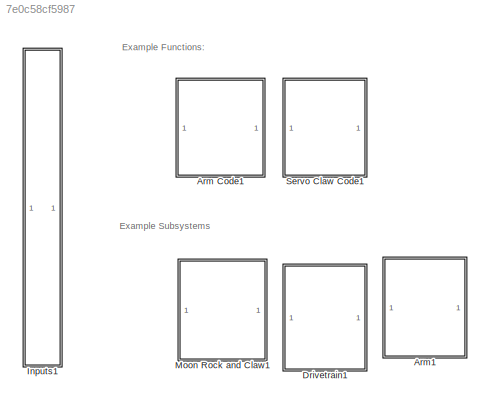
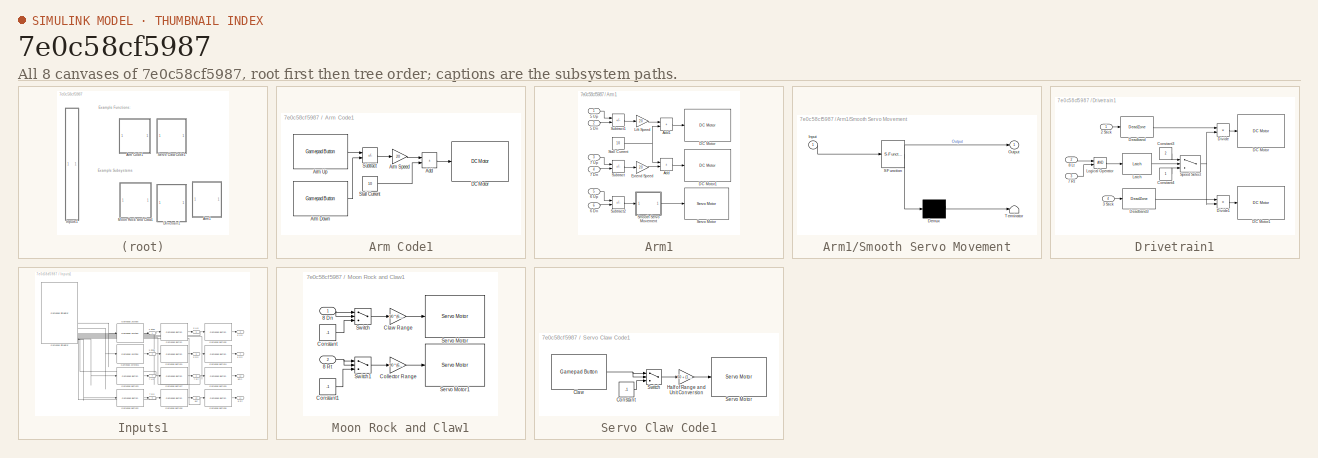
[diagram: thumbnail index - all 8 canvases of the model, root first then tree order]
MODEL slx_7e0c58cf5987
KIND model
CONFIG AbsTol = auto
CONFIG EnableMultiTasking = off
CONFIG FixedStep = auto
CONFIG MaxStep = auto
CONFIG MinStep = auto
CONFIG RelTol = 1e-3
CONFIG SampleTimeConstraint = Unconstrained
CONFIG SolverName = VariableStepAuto
CONFIG StartTime = 0.0
CONFIG StopTime = 10.0
BLOCK [SubSystem] Arm Code1
BLOCK [Sum] Arm Code1/Add
  IconShape = rectangular
BLOCK [Reference] Arm Code1/Arm Down  REF=vexarmcortexlib/Gamepad/Gamepad Button
  SourceBlock = vexarmcortexlib/Gamepad/Gamepad Button
  SourceType = Gamepad Button
BLOCK [Gain] Arm Code1/Arm Speed
  Gain = 20
BLOCK [Reference] Arm Code1/Arm Up  REF=vexarmcortexlib/Gamepad/Gamepad Button
  SourceBlock = vexarmcortexlib/Gamepad/Gamepad Button
  SourceType = Gamepad Button
BLOCK [Reference] Arm Code1/DC Motor  REF=vexarmcortexlib/Actuators/DC Motor
  Commented = on
  SourceBlock = vexarmcortexlib/Actuators/DC Motor
  SourceType = DC Motor
BLOCK [Constant] Arm Code1/Stall Current
  Value = 10
BLOCK [Sum] Arm Code1/Subtract
  IconShape = rectangular
  Inputs = +-
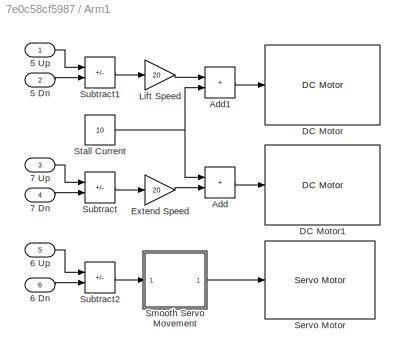
BLOCK [SubSystem] Arm1
BLOCK [Inport] Arm1/5 Dn
  Port = 2
BLOCK [Inport] Arm1/5 Up
BLOCK [Inport] Arm1/6 Dn
  Port = 6
BLOCK [Inport] Arm1/6 Up
  Port = 5
BLOCK [Inport] Arm1/7 Dn
  Port = 4
BLOCK [Inport] Arm1/7 Up
  Port = 3
BLOCK [Sum] Arm1/Add
  IconShape = rectangular
BLOCK [Sum] Arm1/Add1
  IconShape = rectangular
BLOCK [Reference] Arm1/DC Motor  REF=vexarmcortexlib/Actuators/DC Motor
  SourceBlock = vexarmcortexlib/Actuators/DC Motor
  SourceType = DC Motor
BLOCK [Reference] Arm1/DC Motor1  REF=vexarmcortexlib/Actuators/DC Motor
  SourceBlock = vexarmcortexlib/Actuators/DC Motor
  SourceType = DC Motor
BLOCK [Gain] Arm1/Extend Speed
  Gain = 20
BLOCK [Gain] Arm1/Lift Speed
  Gain = 20
BLOCK [Reference] Arm1/Servo Motor  REF=vexarmcortexlib/Actuators/Servo Motor
  SourceBlock = vexarmcortexlib/Actuators/Servo Motor
  SourceType = Servo Motor
BLOCK [SubSystem] Arm1/Smooth Servo Movement
  ErrorFcn = Stateflow.Translate.translate
  PermitHierarchicalResolution = ExplicitOnly
  SFBlockType = Chart
  TreatAsAtomicUnit = on
BLOCK [Demux] Arm1/Smooth Servo Movement/ Demux 
  Outputs = 1
BLOCK [S-Function] Arm1/Smooth Servo Movement/ SFunction 
  EnableBusSupport = on
  FunctionName = sf_sfun
  PortCounts = [1 2]
  SFcnIsStateOwnerBlock = off
  SFunctionDeploymentMode = off
  Tag = Stateflow S-Function 1
BLOCK [Terminator] Arm1/Smooth Servo Movement/ Terminator 
BLOCK [Inport] Arm1/Smooth Servo Movement/Input
BLOCK [Outport] Arm1/Smooth Servo Movement/Output
BLOCK [Constant] Arm1/Stall Current
  Value = 10
BLOCK [Sum] Arm1/Subtract
  IconShape = rectangular
  Inputs = +-
BLOCK [Sum] Arm1/Subtract1
  IconShape = rectangular
  Inputs = +-
BLOCK [Sum] Arm1/Subtract2
  IconShape = rectangular
  Inputs = +-
BLOCK [SubSystem] Drivetrain1
BLOCK [Inport] Drivetrain1/2 Stick
BLOCK [Inport] Drivetrain1/3 Stick
  Port = 4
BLOCK [Inport] Drivetrain1/7 Rt
  Port = 3
BLOCK [Inport] Drivetrain1/8 Lt
  Port = 2
BLOCK [Constant] Drivetrain1/Constant3
  Value = 2
BLOCK [Constant] Drivetrain1/Constant4
BLOCK [Reference] Drivetrain1/DC Motor  REF=vexarmcortexlib/Actuators/DC Motor
  SourceBlock = vexarmcortexlib/Actuators/DC Motor
  SourceType = DC Motor
BLOCK [Reference] Drivetrain1/DC Motor1  REF=vexarmcortexlib/Actuators/DC Motor
  SourceBlock = vexarmcortexlib/Actuators/DC Motor
  SourceType = DC Motor
BLOCK [DeadZone] Drivetrain1/Deadband
  LowerValue = -9
  UpperValue = 9
BLOCK [DeadZone] Drivetrain1/Deadband3
  LowerValue = -9
  UpperValue = 9
BLOCK [Product] Drivetrain1/Divide
  Inputs = */
BLOCK [Product] Drivetrain1/Divide1
  Inputs = */
BLOCK [Reference] Drivetrain1/Latch  REF=vexcommonlib/Latch
  SourceBlock = vexcommonlib/Latch
  SourceType = Latch
BLOCK [Logic] Drivetrain1/Logical Operator
  AllPortsSameDT = off
  OutDataTypeStr = boolean
BLOCK [Switch] Drivetrain1/Speed Select
  Criteria = u2 > Threshold
  InputSameDT = off
  SaturateOnIntegerOverflow = off
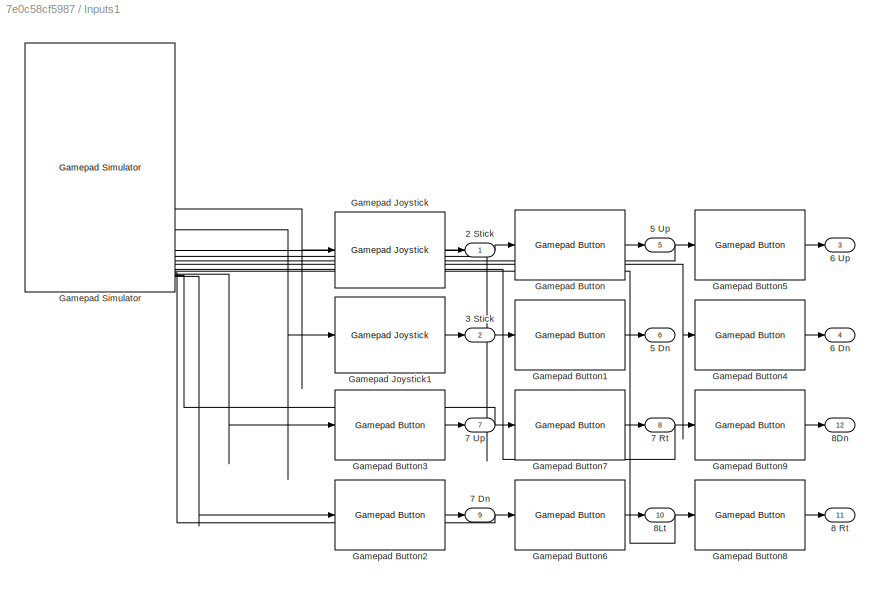
BLOCK [SubSystem] Inputs1
BLOCK [Outport] Inputs1/ 2 Stick
BLOCK [Outport] Inputs1/3 Stick
  Port = 2
BLOCK [Outport] Inputs1/5 Dn
  Port = 6
BLOCK [Outport] Inputs1/5 Up
  Port = 5
BLOCK [Outport] Inputs1/6 Dn
  Port = 4
BLOCK [Outport] Inputs1/6 Up
  Port = 3
BLOCK [Outport] Inputs1/7 Dn
  Port = 9
BLOCK [Outport] Inputs1/7 Rt
  Port = 8
BLOCK [Outport] Inputs1/7 Up
  Port = 7
BLOCK [Outport] Inputs1/8 Rt
  Port = 11
BLOCK [Outport] Inputs1/8Dn
  Port = 12
BLOCK [Outport] Inputs1/8Lt
  Port = 10
BLOCK [Reference] Inputs1/Gamepad Button  REF=vexarmcortexlib/Gamepad/Gamepad Button
  SourceBlock = vexarmcortexlib/Gamepad/Gamepad Button
  SourceType = Gamepad Button
BLOCK [Reference] Inputs1/Gamepad Button1  REF=vexarmcortexlib/Gamepad/Gamepad Button
  SourceBlock = vexarmcortexlib/Gamepad/Gamepad Button
  SourceType = Gamepad Button
BLOCK [Reference] Inputs1/Gamepad Button2  REF=vexarmcortexlib/Gamepad/Gamepad Button
  SourceBlock = vexarmcortexlib/Gamepad/Gamepad Button
  SourceType = Gamepad Button
BLOCK [Reference] Inputs1/Gamepad Button3  REF=vexarmcortexlib/Gamepad/Gamepad Button
  SourceBlock = vexarmcortexlib/Gamepad/Gamepad Button
  SourceType = Gamepad Button
BLOCK [Reference] Inputs1/Gamepad Button4  REF=vexarmcortexlib/Gamepad/Gamepad Button
  SourceBlock = vexarmcortexlib/Gamepad/Gamepad Button
  SourceType = Gamepad Button
BLOCK [Reference] Inputs1/Gamepad Button5  REF=vexarmcortexlib/Gamepad/Gamepad Button
  SourceBlock = vexarmcortexlib/Gamepad/Gamepad Button
  SourceType = Gamepad Button
BLOCK [Reference] Inputs1/Gamepad Button6  REF=vexarmcortexlib/Gamepad/Gamepad Button
  SourceBlock = vexarmcortexlib/Gamepad/Gamepad Button
  SourceType = Gamepad Button
BLOCK [Reference] Inputs1/Gamepad Button7  REF=vexarmcortexlib/Gamepad/Gamepad Button
  SourceBlock = vexarmcortexlib/Gamepad/Gamepad Button
  SourceType = Gamepad Button
BLOCK [Reference] Inputs1/Gamepad Button8  REF=vexarmcortexlib/Gamepad/Gamepad Button
  SourceBlock = vexarmcortexlib/Gamepad/Gamepad Button
  SourceType = Gamepad Button
BLOCK [Reference] Inputs1/Gamepad Button9  REF=vexarmcortexlib/Gamepad/Gamepad Button
  SourceBlock = vexarmcortexlib/Gamepad/Gamepad Button
  SourceType = Gamepad Button
BLOCK [Reference] Inputs1/Gamepad Joystick  REF=vexarmcortexlib/Gamepad/Gamepad Joystick
  SourceBlock = vexarmcortexlib/Gamepad/Gamepad Joystick
  SourceType = Gamepad Joystick
BLOCK [Reference] Inputs1/Gamepad Joystick1  REF=vexarmcortexlib/Gamepad/Gamepad Joystick
  SourceBlock = vexarmcortexlib/Gamepad/Gamepad Joystick
  SourceType = Gamepad Joystick
BLOCK [Reference] Inputs1/Gamepad Simulator  REF=vexcommonlib/Gamepad Simulator
  LibrarySourceBlock = vexarmcortexlib/Utilities/Gamepad Simulator
  SourceBlock = vexcommonlib/Gamepad Simulator
  SourceType = Gamepad Simulator
BLOCK [SubSystem] Moon Rock and Claw1
BLOCK [Inport] Moon Rock and Claw1/8 Dn
BLOCK [Inport] Moon Rock and Claw1/8 Rt
  Port = 2
BLOCK [Gain] Moon Rock and Claw1/Claw Range
  Gain = 90 * (60/127)
BLOCK [Gain] Moon Rock and Claw1/Collector Range
  Gain = 90 * (60/127)
BLOCK [Constant] Moon Rock and Claw1/Constant
  Value = -1
BLOCK [Constant] Moon Rock and Claw1/Constant1
  Value = -1
BLOCK [Reference] Moon Rock and Claw1/Servo Motor  REF=vexarmcortexlib/Actuators/Servo Motor
  SourceBlock = vexarmcortexlib/Actuators/Servo Motor
  SourceType = Servo Motor
BLOCK [Reference] Moon Rock and Claw1/Servo Motor1  REF=vexarmcortexlib/Actuators/Servo Motor
  SourceBlock = vexarmcortexlib/Actuators/Servo Motor
  SourceType = Servo Motor
BLOCK [Switch] Moon Rock and Claw1/Switch
  Criteria = u2 ~= 0
  InputSameDT = off
  SaturateOnIntegerOverflow = off
BLOCK [Switch] Moon Rock and Claw1/Switch1
  Criteria = u2 ~= 0
  InputSameDT = off
  SaturateOnIntegerOverflow = off
BLOCK [SubSystem] Servo Claw Code1
BLOCK [Reference] Servo Claw Code1/Claw  REF=vexarmcortexlib/Gamepad/Gamepad Button
  SourceBlock = vexarmcortexlib/Gamepad/Gamepad Button
  SourceType = Gamepad Button
BLOCK [Constant] Servo Claw Code1/Constant
  Value = -1
BLOCK [Gain] Servo Claw Code1/Half of Range and Unit Conversion
  Gain = 60 + (127/60)
BLOCK [Reference] Servo Claw Code1/Servo Motor  REF=vexarmcortexlib/Actuators/Servo Motor
  Commented = on
  SourceBlock = vexarmcortexlib/Actuators/Servo Motor
  SourceType = Servo Motor
BLOCK [Switch] Servo Claw Code1/Switch
  Criteria = u2 ~= 0
  InputSameDT = off
  SaturateOnIntegerOverflow = off
ANNOTATION (root): Example Functions:
ANNOTATION (root): Example Subsystems
LINE Arm Code1/Add:1 -> Arm Code1/DC Motor:1
LINE Arm Code1/Arm Down:1 -> Arm Code1/Subtract:2
LINE Arm Code1/Arm Speed:1 -> Arm Code1/Add:1
LINE Arm Code1/Arm Up:1 -> Arm Code1/Subtract:1
LINE Arm Code1/Stall Current:1 -> Arm Code1/Add:2
LINE Arm Code1/Subtract:1 -> Arm Code1/Arm Speed:1
LINE Arm1/5 Dn:1 -> Arm1/Subtract1:2
LINE Arm1/5 Up:1 -> Arm1/Subtract1:1
LINE Arm1/6 Dn:1 -> Arm1/Subtract2:2
LINE Arm1/6 Up:1 -> Arm1/Subtract2:1
LINE Arm1/7 Dn:1 -> Arm1/Subtract:2
LINE Arm1/7 Up:1 -> Arm1/Subtract:1
LINE Arm1/Add1:1 -> Arm1/DC Motor:1
LINE Arm1/Add:1 -> Arm1/DC Motor1:1
LINE Arm1/Extend Speed:1 -> Arm1/Add:2
LINE Arm1/Lift Speed:1 -> Arm1/Add1:1
LINE Arm1/Smooth Servo Movement:1 -> Arm1/Servo Motor:1
NET Arm1/Stall Current:1 -> Arm1/Add1:2, Arm1/Add:1
LINE Arm1/Subtract1:1 -> Arm1/Lift Speed:1
LINE Arm1/Subtract2:1 -> Arm1/Smooth Servo Movement:1
LINE Arm1/Subtract:1 -> Arm1/Extend Speed:1
LINE Drivetrain1/2 Stick:1 -> Drivetrain1/Deadband:1
LINE Drivetrain1/3 Stick:1 -> Drivetrain1/Deadband3:1
LINE Drivetrain1/7 Rt:1 -> Drivetrain1/Logical Operator:2
LINE Drivetrain1/8 Lt:1 -> Drivetrain1/Logical Operator:1
LINE Drivetrain1/Constant3:1 -> Drivetrain1/Speed Select:1
LINE Drivetrain1/Constant4:1 -> Drivetrain1/Speed Select:3
LINE Drivetrain1/Deadband3:1 -> Drivetrain1/Divide1:1
LINE Drivetrain1/Deadband:1 -> Drivetrain1/Divide:1
LINE Drivetrain1/Divide1:1 -> Drivetrain1/DC Motor1:1
LINE Drivetrain1/Divide:1 -> Drivetrain1/DC Motor:1
LINE Drivetrain1/Latch:1 -> Drivetrain1/Speed Select:2
LINE Drivetrain1/Logical Operator:1 -> Drivetrain1/Latch:1
NET Drivetrain1/Speed Select:1 -> Drivetrain1/Divide1:2, Drivetrain1/Divide:2
LINE Inputs1/Gamepad Button1:1 -> Inputs1/5 Dn:1
LINE Inputs1/Gamepad Button2:1 -> Inputs1/7 Dn:1
LINE Inputs1/Gamepad Button3:1 -> Inputs1/7 Up:1
LINE Inputs1/Gamepad Button4:1 -> Inputs1/6 Dn:1
LINE Inputs1/Gamepad Button5:1 -> Inputs1/6 Up:1
LINE Inputs1/Gamepad Button6:1 -> Inputs1/8Lt:1
LINE Inputs1/Gamepad Button7:1 -> Inputs1/7 Rt:1
LINE Inputs1/Gamepad Button8:1 -> Inputs1/8 Rt:1
LINE Inputs1/Gamepad Button9:1 -> Inputs1/8Dn:1
LINE Inputs1/Gamepad Button:1 -> Inputs1/5 Up:1
LINE Inputs1/Gamepad Joystick1:1 -> Inputs1/3 Stick:1
LINE Inputs1/Gamepad Joystick:1 -> Inputs1/ 2 Stick:1
LINE Inputs1/Gamepad Simulator:10 -> Inputs1/Gamepad Button9:1
LINE Inputs1/Gamepad Simulator:11 -> Inputs1/Gamepad Button8:1
LINE Inputs1/Gamepad Simulator:12 -> Inputs1/Gamepad Button6:1
LINE Inputs1/Gamepad Simulator:13 -> Inputs1/Gamepad Button3:1
LINE Inputs1/Gamepad Simulator:14 -> Inputs1/Gamepad Button7:1
LINE Inputs1/Gamepad Simulator:15 -> Inputs1/Gamepad Button2:1
LINE Inputs1/Gamepad Simulator:2 -> Inputs1/Gamepad Joystick:1
LINE Inputs1/Gamepad Simulator:3 -> Inputs1/Gamepad Joystick1:1
LINE Inputs1/Gamepad Simulator:5 -> Inputs1/Gamepad Button:1
LINE Inputs1/Gamepad Simulator:6 -> Inputs1/Gamepad Button1:1
LINE Inputs1/Gamepad Simulator:7 -> Inputs1/Gamepad Button5:1
LINE Inputs1/Gamepad Simulator:8 -> Inputs1/Gamepad Button4:1
NET Moon Rock and Claw1/8 Dn:1 -> Moon Rock and Claw1/Switch:1, Moon Rock and Claw1/Switch:2
NET Moon Rock and Claw1/8 Rt:1 -> Moon Rock and Claw1/Switch1:1, Moon Rock and Claw1/Switch1:2
LINE Moon Rock and Claw1/Claw Range:1 -> Moon Rock and Claw1/Servo Motor:1
LINE Moon Rock and Claw1/Collector Range:1 -> Moon Rock and Claw1/Servo Motor1:1
LINE Moon Rock and Claw1/Constant1:1 -> Moon Rock and Claw1/Switch1:3
LINE Moon Rock and Claw1/Constant:1 -> Moon Rock and Claw1/Switch:3
LINE Moon Rock and Claw1/Switch1:1 -> Moon Rock and Claw1/Collector Range:1
LINE Moon Rock and Claw1/Switch:1 -> Moon Rock and Claw1/Claw Range:1
NET Servo Claw Code1/Claw:1 -> Servo Claw Code1/Switch:1, Servo Claw Code1/Switch:2
LINE Servo Claw Code1/Constant:1 -> Servo Claw Code1/Switch:3
LINE Servo Claw Code1/Half of Range and Unit Conversion:1 -> Servo Claw Code1/Servo Motor:1
LINE Servo Claw Code1/Switch:1 -> Servo Claw Code1/Half of Range and Unit Conversion:1
note: NET lines group one-source signal fan-out (src -> all destinations, sorted); 1:1 wires keep LINE
CHART Arm1/Smooth Servo
Movement states=2 transitions=3
  STATE_LABEL 'Constant\nSpeed = 0.5;'
  STATE_LABEL 'Change\nOutput=Output+(Input*Speed);'
CHART  states=0 transitions=0
